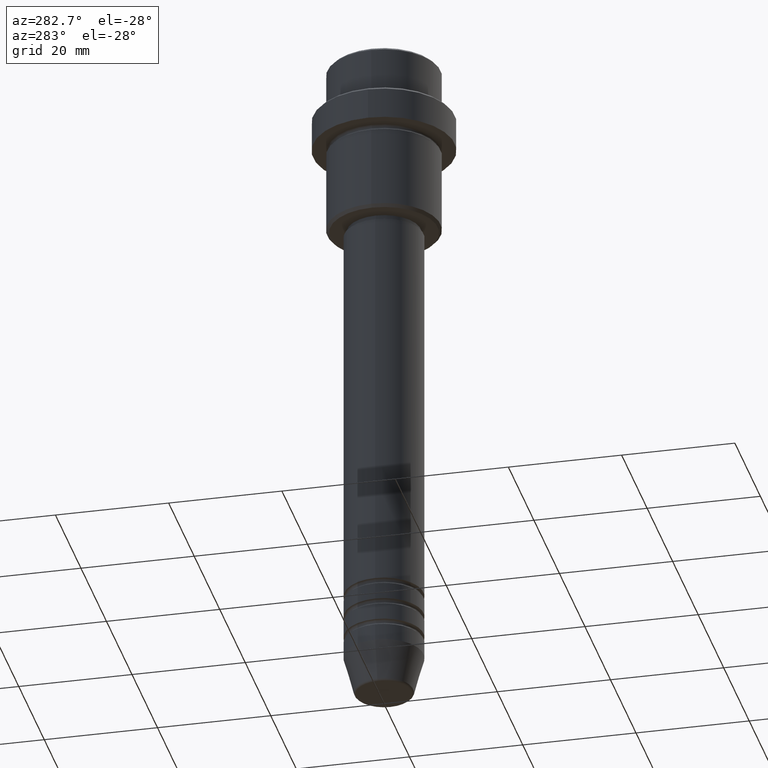
[diagram: clean part render]
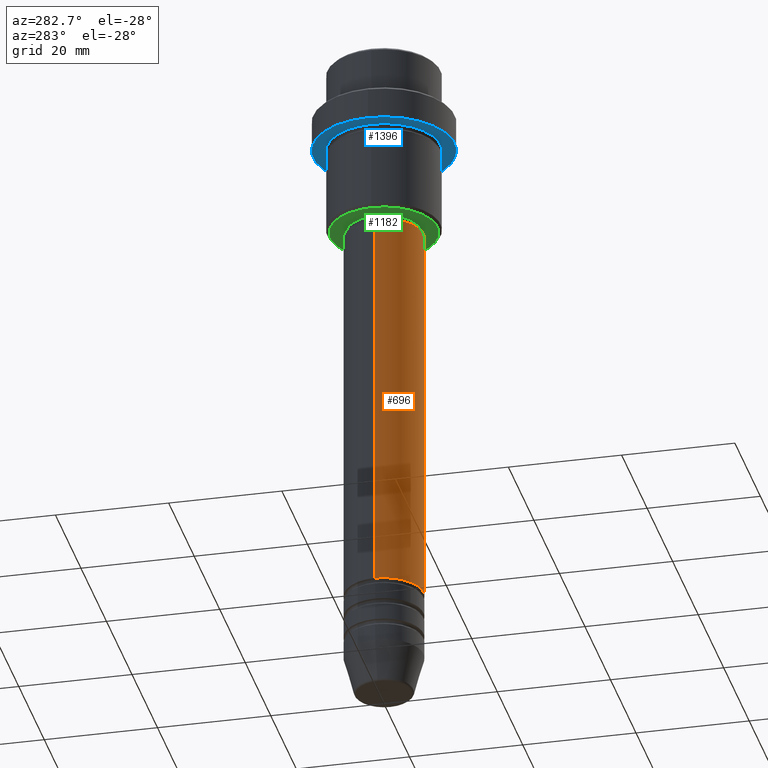
[diagram: same view with three faces highlighted in distinct colors, each labeled with its STEP entity id]
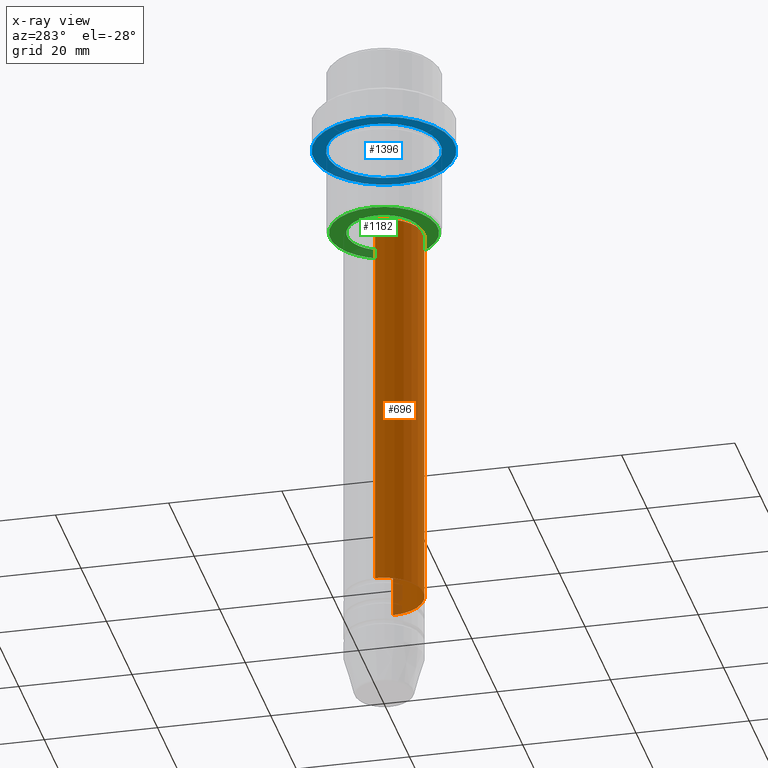
[diagram: x-ray of the same camera — body ghosted, the three highlighted faces saturated]
A machine part, auxiliary view with three faces highlighted in distinct colors.
The next image is the same camera in x-ray (body ghosted, the three faces saturated) — at least one of them is partly hidden behind the body in this view.
Their STEP definitions:

[orange] entity #696 — the highlighted cylindrical surface (partial cylindrical patch) has radius 7 mm, axis along (-0, -0, 1).
#26 = EDGE_CURVE ( 'NONE', #90, #467, #1234, .T. ) ;
#70 = FACE_OUTER_BOUND ( 'NONE', #627, .T. ) ;
#76 = DIRECTION ( 'NONE',  ( -0.000000000000000000, -0.000000000000000000, 1.000000000000000000 ) ) ;
#80 = CIRCLE ( 'NONE', #1078, 7.000000000000000000 ) ;
#87 = ORIENTED_EDGE ( 'NONE', *, *, #739, .T. ) ;
#90 = VERTEX_POINT ( 'NONE', #413 ) ;
#127 = VECTOR ( 'NONE', #603, 1000.000000000000000 ) ;
#152 = CARTESIAN_POINT ( 'NONE',  ( -7.000000000000000000, 8.572527594031473190E-16, -32.00000000000000000 ) ) ;
#165 = ORIENTED_EDGE ( 'NONE', *, *, #26, .F. ) ;
#170 = CYLINDRICAL_SURFACE ( 'NONE', #1287, 7.000000000000000000 ) ;
#298 = DIRECTION ( 'NONE',  ( -0.000000000000000000, -0.000000000000000000, 1.000000000000000000 ) ) ;
#413 = CARTESIAN_POINT ( 'NONE',  ( -7.000000000000000000, 8.572527594031473190E-16, -101.9999999999998721 ) ) ;
#423 = CIRCLE ( 'NONE', #710, 7.000000000000000000 ) ;
#432 = DIRECTION ( 'NONE',  ( 1.000000000000000000, 0.000000000000000000, 0.000000000000000000 ) ) ;
#461 = VERTEX_POINT ( 'NONE', #1318 ) ;
#467 = VERTEX_POINT ( 'NONE', #152 ) ;
#521 = DIRECTION ( 'NONE',  ( 1.000000000000000000, 0.000000000000000000, 0.000000000000000000 ) ) ;
#560 = CARTESIAN_POINT ( 'NONE',  ( -7.000000000000000000, 8.572527594031473190E-16, 0.000000000000000000 ) ) ;
#603 = DIRECTION ( 'NONE',  ( -0.000000000000000000, -0.000000000000000000, 1.000000000000000000 ) ) ;
#627 = EDGE_LOOP ( 'NONE', ( #165, #87, #1352, #1338 ) ) ;
#648 = EDGE_CURVE ( 'NONE', #461, #1040, #1255, .T. ) ;
#696 = ADVANCED_FACE ( 'NONE', ( #70 ), #170, .T. ) ;
#710 = AXIS2_PLACEMENT_3D ( 'NONE', #844, #758, #521 ) ;
#739 = EDGE_CURVE ( 'NONE', #90, #461, #80, .T. ) ;
#758 = DIRECTION ( 'NONE',  ( -0.000000000000000000, -0.000000000000000000, 1.000000000000000000 ) ) ;
#780 = CARTESIAN_POINT ( 'NONE',  ( 7.000000000000000000, 0.000000000000000000, -32.00000000000000000 ) ) ;
#795 = EDGE_CURVE ( 'NONE', #467, #1040, #423, .T. ) ;
#844 = CARTESIAN_POINT ( 'NONE',  ( 0.000000000000000000, 0.000000000000000000, -32.00000000000000000 ) ) ;
#930 = CARTESIAN_POINT ( 'NONE',  ( 0.000000000000000000, 0.000000000000000000, 0.000000000000000000 ) ) ;
#937 = CARTESIAN_POINT ( 'NONE',  ( 7.000000000000000000, 0.000000000000000000, 0.000000000000000000 ) ) ;
#1037 = DIRECTION ( 'NONE',  ( 1.000000000000000000, 0.000000000000000000, 0.000000000000000000 ) ) ;
#1040 = VERTEX_POINT ( 'NONE', #780 ) ;
#1078 = AXIS2_PLACEMENT_3D ( 'NONE', #1408, #298, #432 ) ;
#1234 = LINE ( 'NONE', #560, #1261 ) ;
#1250 = DIRECTION ( 'NONE',  ( -0.000000000000000000, -0.000000000000000000, 1.000000000000000000 ) ) ;
#1255 = LINE ( 'NONE', #937, #127 ) ;
#1261 = VECTOR ( 'NONE', #1250, 1000.000000000000000 ) ;
#1287 = AXIS2_PLACEMENT_3D ( 'NONE', #930, #76, #1037 ) ;
#1318 = CARTESIAN_POINT ( 'NONE',  ( 7.000000000000000000, 0.000000000000000000, -101.9999999999998721 ) ) ;
#1338 = ORIENTED_EDGE ( 'NONE', *, *, #795, .F. ) ;
#1352 = ORIENTED_EDGE ( 'NONE', *, *, #648, .T. ) ;
#1408 = CARTESIAN_POINT ( 'NONE',  ( 0.000000000000000000, 0.000000000000000000, -101.9999999999998721 ) ) ;

[blue] entity #1396 — the highlighted planar face has unit normal (0, 0, -1).
#5 = CARTESIAN_POINT ( 'NONE',  ( 9.999999999999992895, 1.224646799147352468E-15, -15.00000000000000000 ) ) ;
#45 = DIRECTION ( 'NONE',  ( -1.000000000000000000, 0.000000000000000000, 0.000000000000000000 ) ) ;
#62 = DIRECTION ( 'NONE',  ( -0.000000000000000000, -0.000000000000000000, 1.000000000000000000 ) ) ;
#88 = DIRECTION ( 'NONE',  ( 0.000000000000000000, 0.000000000000000000, -1.000000000000000000 ) ) ;
#94 = DIRECTION ( 'NONE',  ( 1.000000000000000000, 0.000000000000000000, 0.000000000000000000 ) ) ;
#97 = CARTESIAN_POINT ( 'NONE',  ( 0.000000000000000000, 0.000000000000000000, -15.00000000000000000 ) ) ;
#119 = DIRECTION ( 'NONE',  ( 1.000000000000000000, 0.000000000000000000, 0.000000000000000000 ) ) ;
#129 = AXIS2_PLACEMENT_3D ( 'NONE', #985, #1416, #748 ) ;
#243 = ORIENTED_EDGE ( 'NONE', *, *, #1201, .T. ) ;
#267 = ORIENTED_EDGE ( 'NONE', *, *, #1140, .T. ) ;
#287 = CARTESIAN_POINT ( 'NONE',  ( 12.50000000000000000, 0.000000000000000000, -15.00000000000000000 ) ) ;
#295 = EDGE_CURVE ( 'NONE', #1409, #664, #1398, .T. ) ;
#297 = FACE_OUTER_BOUND ( 'NONE', #912, .T. ) ;
#310 = CARTESIAN_POINT ( 'NONE',  ( -9.999999999999992895, 0.000000000000000000, -15.00000000000000000 ) ) ;
#515 = PLANE ( 'NONE',  #871 ) ;
#532 = CIRCLE ( 'NONE', #129, 9.999999999999992895 ) ;
#541 = DIRECTION ( 'NONE',  ( -0.000000000000000000, -0.000000000000000000, 1.000000000000000000 ) ) ;
#582 = CARTESIAN_POINT ( 'NONE',  ( 0.000000000000000000, 0.000000000000000000, -15.00000000000000000 ) ) ;
#625 = AXIS2_PLACEMENT_3D ( 'NONE', #582, #62, #45 ) ;
#639 = AXIS2_PLACEMENT_3D ( 'NONE', #97, #541, #119 ) ;
#664 = VERTEX_POINT ( 'NONE', #1046 ) ;
#689 = CIRCLE ( 'NONE', #1357, 12.50000000000000000 ) ;
#722 = CARTESIAN_POINT ( 'NONE',  ( 0.000000000000000000, 0.000000000000000000, -15.00000000000000000 ) ) ;
#747 = VERTEX_POINT ( 'NONE', #310 ) ;
#748 = DIRECTION ( 'NONE',  ( -1.000000000000000000, 0.000000000000000000, 0.000000000000000000 ) ) ;
#824 = CARTESIAN_POINT ( 'NONE',  ( 0.000000000000000000, 12.50000000000000000, -15.00000000000000000 ) ) ;
#871 = AXIS2_PLACEMENT_3D ( 'NONE', #824, #88, #1392 ) ;
#912 = EDGE_LOOP ( 'NONE', ( #1109, #948 ) ) ;
#948 = ORIENTED_EDGE ( 'NONE', *, *, #1369, .F. ) ;
#973 = VERTEX_POINT ( 'NONE', #5 ) ;
#985 = CARTESIAN_POINT ( 'NONE',  ( 0.000000000000000000, 0.000000000000000000, -15.00000000000000000 ) ) ;
#1046 = CARTESIAN_POINT ( 'NONE',  ( -12.50000000000000000, 1.530808498934191521E-15, -15.00000000000000000 ) ) ;
#1101 = CIRCLE ( 'NONE', #625, 9.999999999999992895 ) ;
#1109 = ORIENTED_EDGE ( 'NONE', *, *, #295, .F. ) ;
#1140 = EDGE_CURVE ( 'NONE', #973, #747, #532, .T. ) ;
#1157 = FACE_BOUND ( 'NONE', #1281, .T. ) ;
#1201 = EDGE_CURVE ( 'NONE', #747, #973, #1101, .T. ) ;
#1281 = EDGE_LOOP ( 'NONE', ( #243, #267 ) ) ;
#1357 = AXIS2_PLACEMENT_3D ( 'NONE', #722, #1384, #94 ) ;
#1369 = EDGE_CURVE ( 'NONE', #664, #1409, #689, .T. ) ;
#1384 = DIRECTION ( 'NONE',  ( -0.000000000000000000, -0.000000000000000000, 1.000000000000000000 ) ) ;
#1392 = DIRECTION ( 'NONE',  ( -1.000000000000000000, 0.000000000000000000, -0.000000000000000000 ) ) ;
#1396 = ADVANCED_FACE ( 'NONE', ( #1157, #297 ), #515, .T. ) ;
#1398 = CIRCLE ( 'NONE', #639, 12.50000000000000000 ) ;
#1409 = VERTEX_POINT ( 'NONE', #287 ) ;
#1416 = DIRECTION ( 'NONE',  ( -0.000000000000000000, -0.000000000000000000, 1.000000000000000000 ) ) ;

[green] entity #1182 — the highlighted planar face has unit normal (0, 0, -1).
#112 = ORIENTED_EDGE ( 'NONE', *, *, #209, .T. ) ;
#135 = VERTEX_POINT ( 'NONE', #616 ) ;
#175 = CIRCLE ( 'NONE', #960, 6.499999999999994671 ) ;
#177 = CARTESIAN_POINT ( 'NONE',  ( 0.000000000000000000, 9.999999999999998224, -31.00000000000000000 ) ) ;
#183 = DIRECTION ( 'NONE',  ( -1.000000000000000000, 0.000000000000000000, 0.000000000000000000 ) ) ;
#209 = EDGE_CURVE ( 'NONE', #1118, #1005, #1049, .T. ) ;
#238 = CARTESIAN_POINT ( 'NONE',  ( 6.499999999999994671, 0.000000000000000000, -31.00000000000000000 ) ) ;
#280 = DIRECTION ( 'NONE',  ( 1.000000000000000000, 0.000000000000000000, 0.000000000000000000 ) ) ;
#284 = CARTESIAN_POINT ( 'NONE',  ( 0.000000000000000000, 0.000000000000000000, -31.00000000000000000 ) ) ;
#399 = AXIS2_PLACEMENT_3D ( 'NONE', #538, #650, #950 ) ;
#400 = DIRECTION ( 'NONE',  ( 0.000000000000000000, 0.000000000000000000, -1.000000000000000000 ) ) ;
#469 = AXIS2_PLACEMENT_3D ( 'NONE', #832, #1259, #280 ) ;
#490 = AXIS2_PLACEMENT_3D ( 'NONE', #177, #1348, #1136 ) ;
#519 = VERTEX_POINT ( 'NONE', #238 ) ;
#538 = CARTESIAN_POINT ( 'NONE',  ( 0.000000000000000000, 0.000000000000000000, -31.00000000000000000 ) ) ;
#616 = CARTESIAN_POINT ( 'NONE',  ( -6.499999999999994671, 7.960204194457788574E-16, -31.00000000000000000 ) ) ;
#647 = EDGE_CURVE ( 'NONE', #519, #135, #915, .T. ) ;
#650 = DIRECTION ( 'NONE',  ( 0.000000000000000000, 0.000000000000000000, -1.000000000000000000 ) ) ;
#657 = CARTESIAN_POINT ( 'NONE',  ( 9.499999999999994671, 0.000000000000000000, -31.00000000000000000 ) ) ;
#703 = FACE_BOUND ( 'NONE', #1329, .T. ) ;
#744 = ORIENTED_EDGE ( 'NONE', *, *, #1226, .T. ) ;
#796 = AXIS2_PLACEMENT_3D ( 'NONE', #284, #400, #183 ) ;
#802 = DIRECTION ( 'NONE',  ( 1.000000000000000000, 0.000000000000000000, 0.000000000000000000 ) ) ;
#809 = DIRECTION ( 'NONE',  ( -0.000000000000000000, -0.000000000000000000, 1.000000000000000000 ) ) ;
#815 = FACE_OUTER_BOUND ( 'NONE', #1377, .T. ) ;
#832 = CARTESIAN_POINT ( 'NONE',  ( 0.000000000000000000, 0.000000000000000000, -31.00000000000000000 ) ) ;
#851 = EDGE_CURVE ( 'NONE', #1005, #1118, #1099, .T. ) ;
#915 = CIRCLE ( 'NONE', #469, 6.499999999999994671 ) ;
#950 = DIRECTION ( 'NONE',  ( -1.000000000000000000, 0.000000000000000000, 0.000000000000000000 ) ) ;
#960 = AXIS2_PLACEMENT_3D ( 'NONE', #1013, #809, #802 ) ;
#1005 = VERTEX_POINT ( 'NONE', #1308 ) ;
#1013 = CARTESIAN_POINT ( 'NONE',  ( 0.000000000000000000, 0.000000000000000000, -31.00000000000000000 ) ) ;
#1049 = CIRCLE ( 'NONE', #796, 9.499999999999994671 ) ;
#1099 = CIRCLE ( 'NONE', #399, 9.499999999999994671 ) ;
#1118 = VERTEX_POINT ( 'NONE', #657 ) ;
#1119 = PLANE ( 'NONE',  #490 ) ;
#1136 = DIRECTION ( 'NONE',  ( -1.000000000000000000, 0.000000000000000000, -0.000000000000000000 ) ) ;
#1182 = ADVANCED_FACE ( 'NONE', ( #815, #703 ), #1119, .T. ) ;
#1226 = EDGE_CURVE ( 'NONE', #135, #519, #175, .T. ) ;
#1228 = ORIENTED_EDGE ( 'NONE', *, *, #851, .T. ) ;
#1259 = DIRECTION ( 'NONE',  ( -0.000000000000000000, -0.000000000000000000, 1.000000000000000000 ) ) ;
#1268 = ORIENTED_EDGE ( 'NONE', *, *, #647, .T. ) ;
#1308 = CARTESIAN_POINT ( 'NONE',  ( -9.499999999999994671, 1.194030629168669075E-15, -31.00000000000000000 ) ) ;
#1329 = EDGE_LOOP ( 'NONE', ( #1268, #744 ) ) ;
#1348 = DIRECTION ( 'NONE',  ( 0.000000000000000000, 0.000000000000000000, -1.000000000000000000 ) ) ;
#1377 = EDGE_LOOP ( 'NONE', ( #112, #1228 ) ) ;